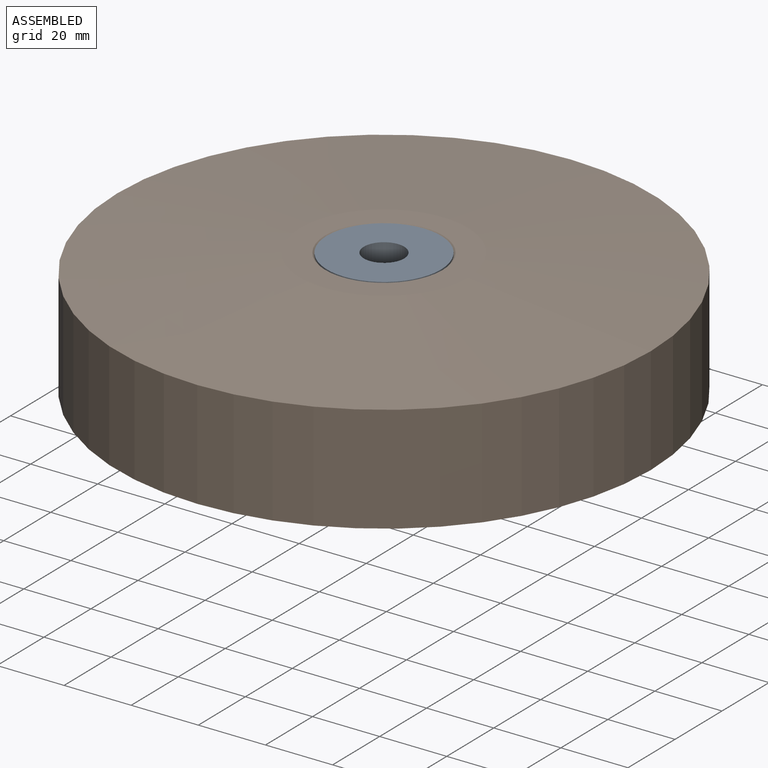
[diagram: assembled view]
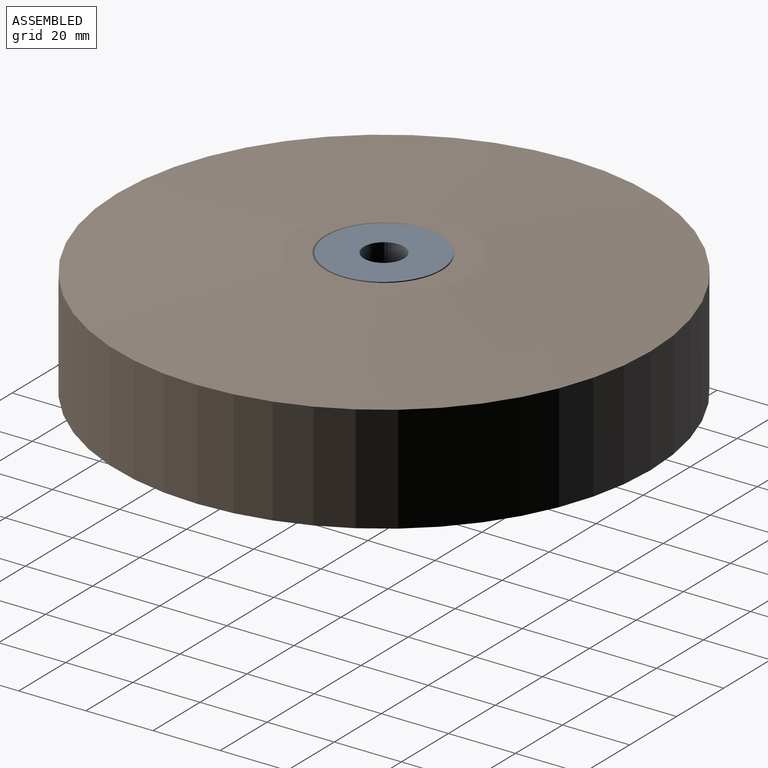
[diagram: assembled view, second angle]
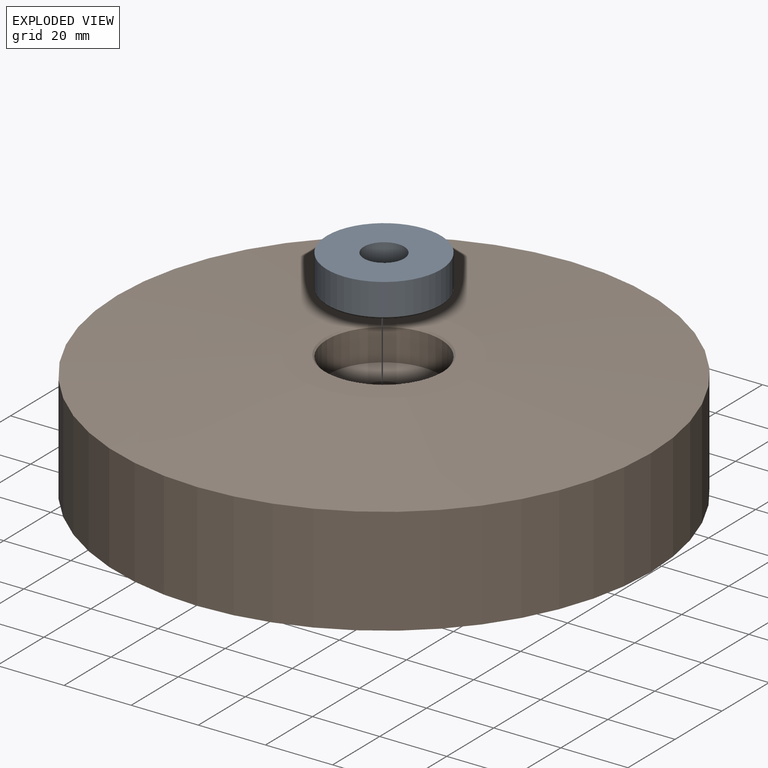
[diagram: exploded view]
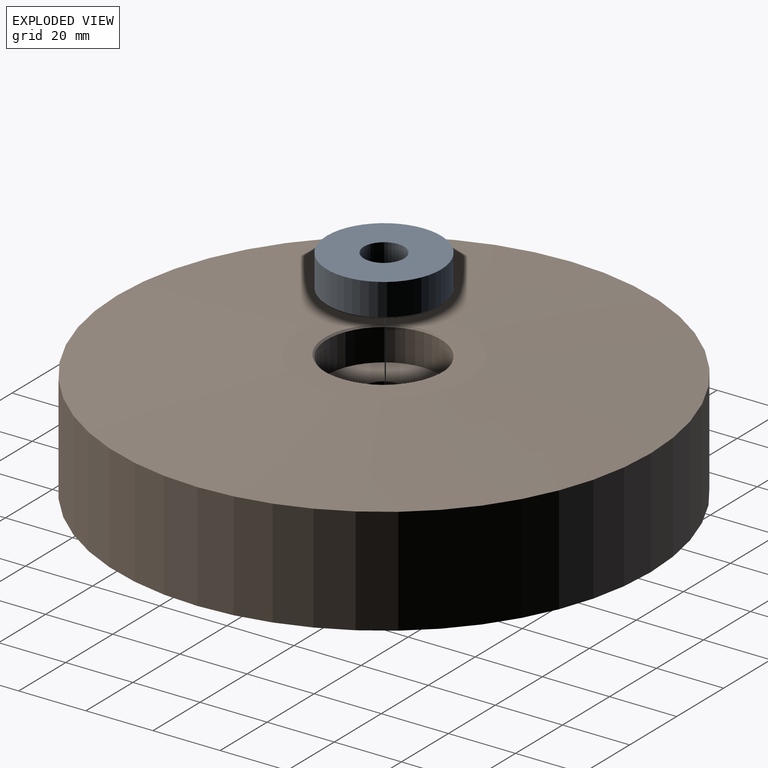
[diagram: exploded view, second angle]
ASSEMBLY  parts=2 mates=2
PART A: 5 faces, bbox 34x34x10 mm
  f0: plane 33x33mm, normal (0,0,-1), area 742.2mm2, adj f1,f4
  f1: cylinder r=6mm len=12mm, axis (0,0,-1), area 377mm2, adj f0,f2
  f2: plane 34x34mm, normal (0,0,1), area 794.8mm2, adj f1,f3
  f3: cylinder r=17mm len=34mm, axis (0,0,-1), area 1014.7mm2, adj f2,f4
  f4: cone r=17mm half-angle=45deg, axis (0,0,1), area 74.4mm2, adj f0,f3
PART B: 12 faces, bbox 159x159x43.3 mm
  f0: cylinder r=17mm len=34mm, axis (0,0,-1), area 1014.7mm2, adj f1,f11
  f1: cone r=17.5mm half-angle=45deg, axis (0,0,1), area 76.6mm2, adj f0,f2
  f2: plane 50x50mm, normal (0,0,1), area 1001.4mm2, adj f1,f3
  f3: cone r=25mm half-angle=84.4deg, axis (0,0,-1), area 17976.6mm2, adj f2,f4
  f4: cylinder r=79.5mm len=159mm, axis (0,0,-1), area 15984.4mm2, adj f3,f5
  f5: plane 159x159mm, normal (0,0,-1), area 11843.8mm2, adj f4,f6
  f6: cylinder r=50.5mm len=101mm, axis (0,0,-1), area 1903.8mm2, adj f5,f7
  f7: plane 101x101mm, normal (0,0,-1), area 7697.7mm2, adj f6,f8
  f8: cylinder r=10mm len=25mm, axis (0,0,-1), area 1570.8mm2, adj f7,f9
  f9: cone r=10mm half-angle=60deg, axis (0,0,-1), area 232.2mm2, adj f8,f10
  f10: cylinder r=6mm len=12mm, axis (0,0,-1), area 225.8mm2, adj f9,f11
  f11: plane 34x34mm, normal (0,0,1), area 794.8mm2, adj f0,f10
PLACE A t=(-8.1,-0.86,17.37)mm
PLACE B t=(-8.1,-0.86,-15.93)mm
MATE planar A.f1 <-> B.f0  axis (0,0,1) through (-8.1,-0.86,27.37)mm
MATE cylindrical A.f1 <-> B.f0  axis (0,0,-1) through (-8.1,-0.86,22.62)mm
